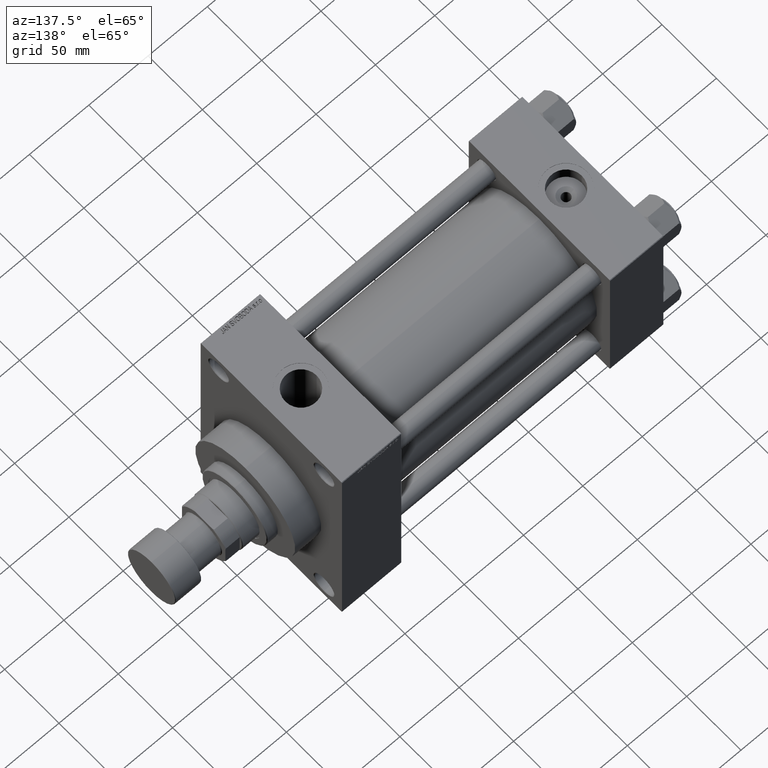
[diagram: clean part render]
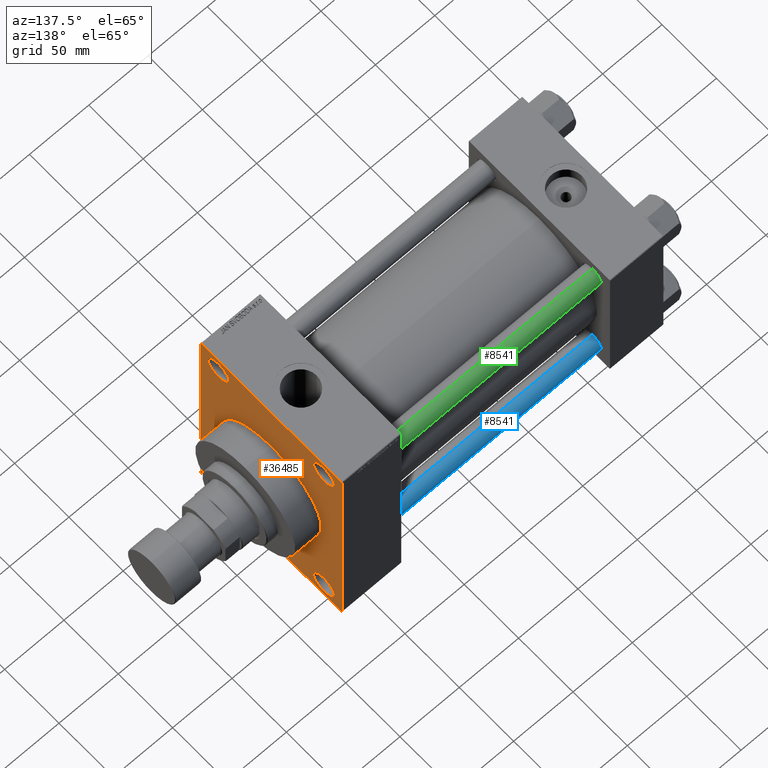
[diagram: same view with three faces highlighted in distinct colors, each labeled with its STEP entity id]
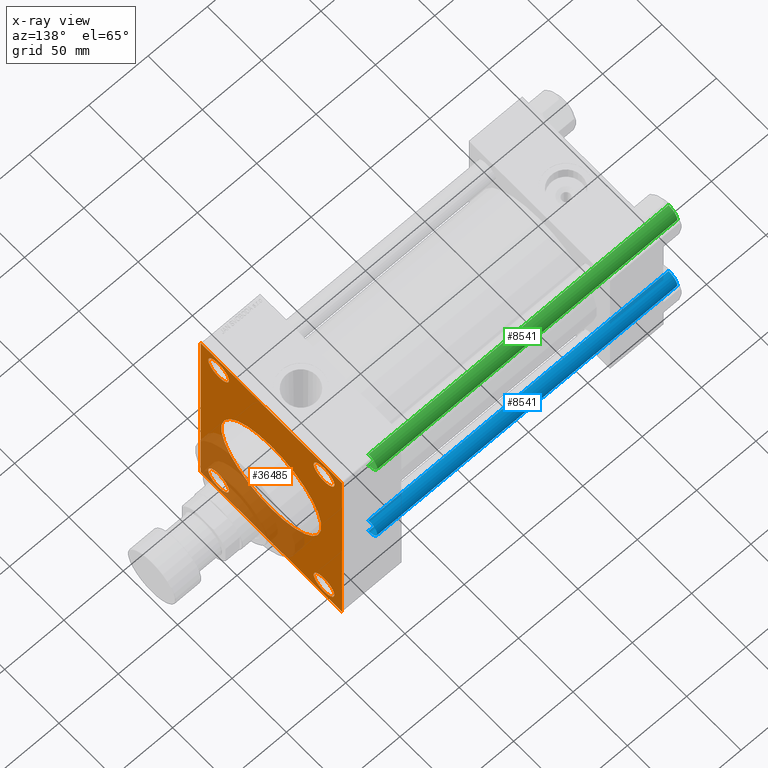
[diagram: x-ray of the same camera — body ghosted, the three highlighted faces saturated]
A machine part, auxiliary view with three faces highlighted in distinct colors.
The next image is the same camera in x-ray (body ghosted, the three faces saturated) — at least one of them is partly hidden behind the body in this view.
Their STEP definitions:

[orange] entity #36485 — the highlighted planar face has unit normal (-1, 0, 0).
#85 = DIRECTION ( 'NONE',  ( -1.000000000000000000, 0.000000000000000000, -0.000000000000000000 ) ) ;
#412 = ORIENTED_EDGE ( 'NONE', *, *, #6752, .T. ) ;
#1399 = ORIENTED_EDGE ( 'NONE', *, *, #30051, .T. ) ;
#1734 = DIRECTION ( 'NONE',  ( 1.000000000000000000, 0.000000000000000000, 0.000000000000000000 ) ) ;
#1818 = DIRECTION ( 'NONE',  ( 0.000000000000000000, 0.000000000000000000, 1.000000000000000000 ) ) ;
#2237 = VERTEX_POINT ( 'NONE', #36051 ) ;
#2972 = DIRECTION ( 'NONE',  ( -0.000000000000000000, 0.7071067811865474617, 0.7071067811865474617 ) ) ;
#3096 = DIRECTION ( 'NONE',  ( 0.000000000000000000, 0.000000000000000000, 1.000000000000000000 ) ) ;
#4787 = VERTEX_POINT ( 'NONE', #19225 ) ;
#4911 = ORIENTED_EDGE ( 'NONE', *, *, #46369, .T. ) ;
#5255 = VERTEX_POINT ( 'NONE', #42085 ) ;
#5990 = EDGE_CURVE ( 'NONE', #37056, #36915, #18496, .T. ) ;
#6415 = AXIS2_PLACEMENT_3D ( 'NONE', #33400, #85, #14921 ) ;
#6752 = EDGE_CURVE ( 'NONE', #26861, #14771, #14696, .T. ) ;
#6933 = ORIENTED_EDGE ( 'NONE', *, *, #28533, .T. ) ;
#6994 = ORIENTED_EDGE ( 'NONE', *, *, #35437, .T. ) ;
#7042 = DIRECTION ( 'NONE',  ( 0.000000000000000000, 0.000000000000000000, -1.000000000000000000 ) ) ;
#7650 = EDGE_CURVE ( 'NONE', #36219, #4787, #22130, .T. ) ;
#7727 = EDGE_LOOP ( 'NONE', ( #4911, #40565, #17588, #6994, #14036, #16125, #43380, #45181 ) ) ;
#8001 = CARTESIAN_POINT ( 'NONE',  ( 270.9999999999999432, -48.50000000000000000, -90.49999999999990052 ) ) ;
#8065 = CARTESIAN_POINT ( 'NONE',  ( 270.9999999999999432, 64.50000000000000000, 95.00000000000000000 ) ) ;
#8259 = CIRCLE ( 'NONE', #23767, 9.499999999999896971 ) ;
#8706 = VECTOR ( 'NONE', #2972, 1000.000000000000114 ) ;
#9236 = VERTEX_POINT ( 'NONE', #34212 ) ;
#9444 = ORIENTED_EDGE ( 'NONE', *, *, #10445, .T. ) ;
#9517 = CARTESIAN_POINT ( 'NONE',  ( 270.9999999999999432, -64.50000000000000000, -95.00000000000002842 ) ) ;
#9769 = DIRECTION ( 'NONE',  ( -1.000000000000000000, -0.000000000000000000, -0.000000000000000000 ) ) ;
#9778 = CARTESIAN_POINT ( 'NONE',  ( 270.9999999999999432, 65.00000000000000000, -94.50000000000002842 ) ) ;
#10147 = CARTESIAN_POINT ( 'NONE',  ( 270.9999999999999432, 48.50000000000000000, 81.00000000000000000 ) ) ;
#10203 = CARTESIAN_POINT ( 'NONE',  ( 270.9999999999999432, -48.50000000000000000, 90.49999999999990052 ) ) ;
#10445 = EDGE_CURVE ( 'NONE', #39868, #45071, #21254, .T. ) ;
#10466 = DIRECTION ( 'NONE',  ( 0.000000000000000000, 0.000000000000000000, 1.000000000000000000 ) ) ;
#10864 = CIRCLE ( 'NONE', #11627, 9.499999999999896971 ) ;
#11157 = VECTOR ( 'NONE', #25531, 1000.000000000000114 ) ;
#11353 = EDGE_LOOP ( 'NONE', ( #9444, #1399 ) ) ;
#11627 = AXIS2_PLACEMENT_3D ( 'NONE', #29162, #17976, #18457 ) ;
#11662 = CIRCLE ( 'NONE', #13989, 9.499999999999896971 ) ;
#11748 = PLANE ( 'NONE',  #6415 ) ;
#11923 = DIRECTION ( 'NONE',  ( 0.000000000000000000, -1.000000000000000000, 0.000000000000000000 ) ) ;
#12392 = EDGE_CURVE ( 'NONE', #44246, #32976, #42603, .T. ) ;
#12414 = CIRCLE ( 'NONE', #23283, 9.499999999999896971 ) ;
#12790 = EDGE_LOOP ( 'NONE', ( #32783, #412 ) ) ;
#13036 = AXIS2_PLACEMENT_3D ( 'NONE', #46329, #34650, #1818 ) ;
#13458 = EDGE_CURVE ( 'NONE', #5255, #32976, #15813, .T. ) ;
#13989 = AXIS2_PLACEMENT_3D ( 'NONE', #35998, #47443, #10466 ) ;
#14036 = ORIENTED_EDGE ( 'NONE', *, *, #17519, .F. ) ;
#14517 = CIRCLE ( 'NONE', #23052, 9.499999999999896971 ) ;
#14696 = CIRCLE ( 'NONE', #44990, 9.499999999999896971 ) ;
#14771 = VERTEX_POINT ( 'NONE', #8001 ) ;
#14850 = CARTESIAN_POINT ( 'NONE',  ( 270.9999999999999432, 48.50000000000000000, -71.50000000000009948 ) ) ;
#14921 = DIRECTION ( 'NONE',  ( -0.000000000000000000, 0.000000000000000000, 1.000000000000000000 ) ) ;
#15606 = EDGE_LOOP ( 'NONE', ( #6933, #37493 ) ) ;
#15813 = LINE ( 'NONE', #37224, #32222 ) ;
#16125 = ORIENTED_EDGE ( 'NONE', *, *, #30946, .T. ) ;
#16537 = EDGE_CURVE ( 'NONE', #36915, #37056, #8259, .T. ) ;
#17075 = DIRECTION ( 'NONE',  ( 0.000000000000000000, 0.000000000000000000, 1.000000000000000000 ) ) ;
#17362 = CIRCLE ( 'NONE', #18925, 46.00000000000000000 ) ;
#17365 = ORIENTED_EDGE ( 'NONE', *, *, #41335, .F. ) ;
#17413 = CARTESIAN_POINT ( 'NONE',  ( 270.9999999999999432, 65.00000000000000000, 95.00000000000000000 ) ) ;
#17519 = EDGE_CURVE ( 'NONE', #30579, #9236, #22548, .T. ) ;
#17569 = EDGE_CURVE ( 'NONE', #18954, #23853, #29280, .T. ) ;
#17588 = ORIENTED_EDGE ( 'NONE', *, *, #13458, .F. ) ;
#17921 = EDGE_CURVE ( 'NONE', #14771, #26861, #14517, .T. ) ;
#17976 = DIRECTION ( 'NONE',  ( -1.000000000000000000, -0.000000000000000000, -0.000000000000000000 ) ) ;
#18187 = CARTESIAN_POINT ( 'NONE',  ( 270.9999999999999432, 65.00000000000000000, 94.50000000000000000 ) ) ;
#18228 = CARTESIAN_POINT ( 'NONE',  ( 270.9999999999999432, 0.000000000000000000, 46.00000000000000000 ) ) ;
#18457 = DIRECTION ( 'NONE',  ( 0.000000000000000000, 0.000000000000000000, 1.000000000000000000 ) ) ;
#18496 = CIRCLE ( 'NONE', #13036, 9.499999999999896971 ) ;
#18576 = FACE_BOUND ( 'NONE', #32505, .T. ) ;
#18860 = CARTESIAN_POINT ( 'NONE',  ( 270.9999999999999432, -48.50000000000000000, 81.00000000000000000 ) ) ;
#18895 = CARTESIAN_POINT ( 'NONE',  ( 270.9999999999999432, 0.000000000000000000, 0.000000000000000000 ) ) ;
#18925 = AXIS2_PLACEMENT_3D ( 'NONE', #42844, #1734, #45998 ) ;
#18954 = VERTEX_POINT ( 'NONE', #32183 ) ;
#19225 = CARTESIAN_POINT ( 'NONE',  ( 270.9999999999999432, -65.00000000000000000, 94.49999999999992895 ) ) ;
#19295 = FACE_BOUND ( 'NONE', #11353, .T. ) ;
#19345 = DIRECTION ( 'NONE',  ( 0.000000000000000000, 0.000000000000000000, 1.000000000000000000 ) ) ;
#19993 = DIRECTION ( 'NONE',  ( 0.000000000000000000, 0.7071067811865376918, -0.7071067811865574537 ) ) ;
#20192 = DIRECTION ( 'NONE',  ( -1.000000000000000000, -0.000000000000000000, -0.000000000000000000 ) ) ;
#21051 = EDGE_CURVE ( 'NONE', #2237, #36219, #24220, .T. ) ;
#21103 = CARTESIAN_POINT ( 'NONE',  ( 270.9999999999999432, 48.50000000000000000, -90.49999999999990052 ) ) ;
#21226 = DIRECTION ( 'NONE',  ( 0.000000000000000000, 0.000000000000000000, 1.000000000000000000 ) ) ;
#21254 = CIRCLE ( 'NONE', #39090, 9.499999999999896971 ) ;
#22130 = LINE ( 'NONE', #22604, #11157 ) ;
#22548 = LINE ( 'NONE', #41025, #38560 ) ;
#22604 = CARTESIAN_POINT ( 'NONE',  ( 270.9999999999999432, -65.00000000000000000, 94.49999999999992895 ) ) ;
#22910 = DIRECTION ( 'NONE',  ( 0.000000000000000000, -0.7071067811865474617, 0.7071067811865474617 ) ) ;
#23052 = AXIS2_PLACEMENT_3D ( 'NONE', #43368, #24867, #21226 ) ;
#23118 = EDGE_LOOP ( 'NONE', ( #17365, #36908 ) ) ;
#23283 = AXIS2_PLACEMENT_3D ( 'NONE', #35542, #9769, #17075 ) ;
#23767 = AXIS2_PLACEMENT_3D ( 'NONE', #10147, #32279, #35915 ) ;
#23832 = CARTESIAN_POINT ( 'NONE',  ( 270.9999999999999432, -48.50000000000000000, -81.00000000000000000 ) ) ;
#23853 = VERTEX_POINT ( 'NONE', #18228 ) ;
#24220 = LINE ( 'NONE', #17413, #45691 ) ;
#24769 = ORIENTED_EDGE ( 'NONE', *, *, #5990, .T. ) ;
#24867 = DIRECTION ( 'NONE',  ( -1.000000000000000000, -0.000000000000000000, -0.000000000000000000 ) ) ;
#25079 = LINE ( 'NONE', #9778, #8706 ) ;
#25284 = ORIENTED_EDGE ( 'NONE', *, *, #16537, .T. ) ;
#25531 = DIRECTION ( 'NONE',  ( -0.000000000000000000, -0.7071067811865474617, -0.7071067811865474617 ) ) ;
#26419 = CARTESIAN_POINT ( 'NONE',  ( 270.9999999999999432, 48.50000000000000000, 71.50000000000009948 ) ) ;
#26489 = CARTESIAN_POINT ( 'NONE',  ( 270.9999999999999432, -65.00000000000000000, 94.99999999999998579 ) ) ;
#26861 = VERTEX_POINT ( 'NONE', #43292 ) ;
#27284 = VERTEX_POINT ( 'NONE', #14850 ) ;
#28075 = EDGE_CURVE ( 'NONE', #27284, #48140, #12414, .T. ) ;
#28533 = EDGE_CURVE ( 'NONE', #48140, #27284, #10864, .T. ) ;
#29162 = CARTESIAN_POINT ( 'NONE',  ( 270.9999999999999432, 48.50000000000000000, -81.00000000000000000 ) ) ;
#29280 = CIRCLE ( 'NONE', #30037, 46.00000000000000000 ) ;
#29810 = DIRECTION ( 'NONE',  ( -1.000000000000000000, -0.000000000000000000, -0.000000000000000000 ) ) ;
#30037 = AXIS2_PLACEMENT_3D ( 'NONE', #18895, #33724, #44681 ) ;
#30051 = EDGE_CURVE ( 'NONE', #45071, #39868, #11662, .T. ) ;
#30579 = VERTEX_POINT ( 'NONE', #18187 ) ;
#30946 = EDGE_CURVE ( 'NONE', #30579, #2237, #44329, .T. ) ;
#32183 = CARTESIAN_POINT ( 'NONE',  ( 270.9999999999999432, 5.633375276077824704E-15, -46.00000000000000000 ) ) ;
#32222 = VECTOR ( 'NONE', #11923, 1000.000000000000000 ) ;
#32279 = DIRECTION ( 'NONE',  ( -1.000000000000000000, -0.000000000000000000, -0.000000000000000000 ) ) ;
#32505 = EDGE_LOOP ( 'NONE', ( #25284, #24769 ) ) ;
#32783 = ORIENTED_EDGE ( 'NONE', *, *, #17921, .T. ) ;
#32976 = VERTEX_POINT ( 'NONE', #39611 ) ;
#33400 = CARTESIAN_POINT ( 'NONE',  ( 270.9999999999999432, 0.000000000000000000, 0.000000000000000000 ) ) ;
#33484 = DIRECTION ( 'NONE',  ( 0.000000000000000000, 0.000000000000000000, -1.000000000000000000 ) ) ;
#33724 = DIRECTION ( 'NONE',  ( 1.000000000000000000, 0.000000000000000000, 0.000000000000000000 ) ) ;
#33774 = LINE ( 'NONE', #26489, #36171 ) ;
#34116 = FACE_OUTER_BOUND ( 'NONE', #7727, .T. ) ;
#34212 = CARTESIAN_POINT ( 'NONE',  ( 270.9999999999999432, 65.00000000000000000, -94.50000000000002842 ) ) ;
#34650 = DIRECTION ( 'NONE',  ( -1.000000000000000000, -0.000000000000000000, -0.000000000000000000 ) ) ;
#34892 = CARTESIAN_POINT ( 'NONE',  ( 270.9999999999999432, 48.50000000000000000, 90.49999999999990052 ) ) ;
#35437 = EDGE_CURVE ( 'NONE', #5255, #9236, #25079, .T. ) ;
#35542 = CARTESIAN_POINT ( 'NONE',  ( 270.9999999999999432, 48.50000000000000000, -81.00000000000000000 ) ) ;
#35915 = DIRECTION ( 'NONE',  ( 0.000000000000000000, 0.000000000000000000, 1.000000000000000000 ) ) ;
#35998 = CARTESIAN_POINT ( 'NONE',  ( 270.9999999999999432, -48.50000000000000000, 81.00000000000000000 ) ) ;
#36051 = CARTESIAN_POINT ( 'NONE',  ( 270.9999999999999432, 64.50000000000000000, 95.00000000000000000 ) ) ;
#36171 = VECTOR ( 'NONE', #7042, 1000.000000000000000 ) ;
#36219 = VERTEX_POINT ( 'NONE', #39265 ) ;
#36485 = ADVANCED_FACE ( 'NONE', ( #19295, #37282, #40939, #18576, #45081, #34116 ), #11748, .F. ) ;
#36908 = ORIENTED_EDGE ( 'NONE', *, *, #17569, .F. ) ;
#36915 = VERTEX_POINT ( 'NONE', #26419 ) ;
#37056 = VERTEX_POINT ( 'NONE', #34892 ) ;
#37224 = CARTESIAN_POINT ( 'NONE',  ( 270.9999999999999432, 65.00000000000000000, -95.00000000000002842 ) ) ;
#37282 = FACE_BOUND ( 'NONE', #12790, .T. ) ;
#37493 = ORIENTED_EDGE ( 'NONE', *, *, #28075, .T. ) ;
#38560 = VECTOR ( 'NONE', #33484, 1000.000000000000000 ) ;
#39090 = AXIS2_PLACEMENT_3D ( 'NONE', #18860, #29810, #19345 ) ;
#39265 = CARTESIAN_POINT ( 'NONE',  ( 270.9999999999999432, -64.49999999999994316, 94.99999999999998579 ) ) ;
#39611 = CARTESIAN_POINT ( 'NONE',  ( 270.9999999999999432, -64.50000000000000000, -95.00000000000002842 ) ) ;
#39868 = VERTEX_POINT ( 'NONE', #40193 ) ;
#40193 = CARTESIAN_POINT ( 'NONE',  ( 270.9999999999999432, -48.50000000000000000, 71.50000000000009948 ) ) ;
#40565 = ORIENTED_EDGE ( 'NONE', *, *, #12392, .T. ) ;
#40939 = FACE_BOUND ( 'NONE', #15606, .T. ) ;
#41025 = CARTESIAN_POINT ( 'NONE',  ( 270.9999999999999432, 65.00000000000000000, 95.00000000000000000 ) ) ;
#41335 = EDGE_CURVE ( 'NONE', #23853, #18954, #17362, .T. ) ;
#41589 = CARTESIAN_POINT ( 'NONE',  ( 270.9999999999999432, -65.00000000000000000, -94.50000000000001421 ) ) ;
#42085 = CARTESIAN_POINT ( 'NONE',  ( 270.9999999999999432, 64.50000000000000000, -95.00000000000002842 ) ) ;
#42603 = LINE ( 'NONE', #9517, #45419 ) ;
#42844 = CARTESIAN_POINT ( 'NONE',  ( 270.9999999999999432, 0.000000000000000000, 0.000000000000000000 ) ) ;
#43292 = CARTESIAN_POINT ( 'NONE',  ( 270.9999999999999432, -48.50000000000000000, -71.50000000000009948 ) ) ;
#43368 = CARTESIAN_POINT ( 'NONE',  ( 270.9999999999999432, -48.50000000000000000, -81.00000000000000000 ) ) ;
#43380 = ORIENTED_EDGE ( 'NONE', *, *, #21051, .T. ) ;
#44246 = VERTEX_POINT ( 'NONE', #41589 ) ;
#44329 = LINE ( 'NONE', #8065, #45884 ) ;
#44681 = DIRECTION ( 'NONE',  ( 0.000000000000000000, 0.000000000000000000, -1.000000000000000000 ) ) ;
#44990 = AXIS2_PLACEMENT_3D ( 'NONE', #23832, #20192, #3096 ) ;
#45071 = VERTEX_POINT ( 'NONE', #10203 ) ;
#45081 = FACE_BOUND ( 'NONE', #23118, .T. ) ;
#45181 = ORIENTED_EDGE ( 'NONE', *, *, #7650, .T. ) ;
#45419 = VECTOR ( 'NONE', #19993, 999.9999999999998863 ) ;
#45691 = VECTOR ( 'NONE', #46359, 1000.000000000000000 ) ;
#45884 = VECTOR ( 'NONE', #22910, 1000.000000000000114 ) ;
#45998 = DIRECTION ( 'NONE',  ( 0.000000000000000000, 0.000000000000000000, -1.000000000000000000 ) ) ;
#46329 = CARTESIAN_POINT ( 'NONE',  ( 270.9999999999999432, 48.50000000000000000, 81.00000000000000000 ) ) ;
#46359 = DIRECTION ( 'NONE',  ( 0.000000000000000000, -1.000000000000000000, -1.067522139062650425E-16 ) ) ;
#46369 = EDGE_CURVE ( 'NONE', #4787, #44246, #33774, .T. ) ;
#47443 = DIRECTION ( 'NONE',  ( -1.000000000000000000, -0.000000000000000000, -0.000000000000000000 ) ) ;
#48140 = VERTEX_POINT ( 'NONE', #21103 ) ;

[blue] entity #8541 — the highlighted cylindrical surface (edge-blend (fillet) strip) has radius 8 mm, axis along (-1, -0, 0).
#3929 = LINE ( 'NONE', #41360, #13429 ) ;
#5021 = VECTOR ( 'NONE', #17263, 1000.000000000000000 ) ;
#8033 = DIRECTION ( 'NONE',  ( -0.000000000000000000, -0.000000000000000000, -1.000000000000000000 ) ) ;
#8246 = CARTESIAN_POINT ( 'NONE',  ( 8.000000000000000000, 9.797174393178825657E-16, 253.5000000000000568 ) ) ;
#8541 = ADVANCED_FACE ( 'NONE', ( #16206 ), #27383, .T. ) ;
#8592 = VERTEX_POINT ( 'NONE', #10104 ) ;
#9747 = AXIS2_PLACEMENT_3D ( 'NONE', #42812, #13620, #17518 ) ;
#9958 = EDGE_CURVE ( 'NONE', #21903, #14810, #36869, .T. ) ;
#10104 = CARTESIAN_POINT ( 'NONE',  ( 8.000000000000000000, 9.797174393178825657E-16, 0.5000000000000004441 ) ) ;
#12921 = DIRECTION ( 'NONE',  ( 0.000000000000000000, 0.000000000000000000, -1.000000000000000000 ) ) ;
#13429 = VECTOR ( 'NONE', #8033, 1000.000000000000000 ) ;
#13620 = DIRECTION ( 'NONE',  ( -0.000000000000000000, -0.000000000000000000, 1.000000000000000000 ) ) ;
#14810 = VERTEX_POINT ( 'NONE', #8246 ) ;
#14943 = EDGE_LOOP ( 'NONE', ( #48075, #41847, #22000, #29092 ) ) ;
#15287 = CARTESIAN_POINT ( 'NONE',  ( -8.000000000000000000, 0.000000000000000000, 253.5000000000000568 ) ) ;
#16206 = FACE_OUTER_BOUND ( 'NONE', #14943, .T. ) ;
#17263 = DIRECTION ( 'NONE',  ( -0.000000000000000000, -0.000000000000000000, -1.000000000000000000 ) ) ;
#17369 = AXIS2_PLACEMENT_3D ( 'NONE', #30697, #12921, #46492 ) ;
#17518 = DIRECTION ( 'NONE',  ( 1.000000000000000000, 0.000000000000000000, 0.000000000000000000 ) ) ;
#20581 = CARTESIAN_POINT ( 'NONE',  ( 0.000000000000000000, 0.000000000000000000, 254.0000000000000000 ) ) ;
#21903 = VERTEX_POINT ( 'NONE', #15287 ) ;
#22000 = ORIENTED_EDGE ( 'NONE', *, *, #46197, .T. ) ;
#25164 = AXIS2_PLACEMENT_3D ( 'NONE', #20581, #38568, #31280 ) ;
#27383 = CYLINDRICAL_SURFACE ( 'NONE', #25164, 8.000000000000000000 ) ;
#29092 = ORIENTED_EDGE ( 'NONE', *, *, #36707, .F. ) ;
#30697 = CARTESIAN_POINT ( 'NONE',  ( 0.000000000000000000, 0.000000000000000000, 253.5000000000000568 ) ) ;
#31280 = DIRECTION ( 'NONE',  ( -1.000000000000000000, 0.000000000000000000, 0.000000000000000000 ) ) ;
#31517 = CIRCLE ( 'NONE', #9747, 8.000000000000000000 ) ;
#31616 = CARTESIAN_POINT ( 'NONE',  ( 8.000000000000000000, 9.797174393178825657E-16, 254.0000000000000000 ) ) ;
#32409 = VERTEX_POINT ( 'NONE', #42290 ) ;
#36707 = EDGE_CURVE ( 'NONE', #21903, #32409, #3929, .T. ) ;
#36869 = CIRCLE ( 'NONE', #17369, 8.000000000000000000 ) ;
#38568 = DIRECTION ( 'NONE',  ( -0.000000000000000000, -0.000000000000000000, -1.000000000000000000 ) ) ;
#41360 = CARTESIAN_POINT ( 'NONE',  ( -8.000000000000000000, 0.000000000000000000, 254.0000000000000000 ) ) ;
#41847 = ORIENTED_EDGE ( 'NONE', *, *, #45080, .T. ) ;
#42290 = CARTESIAN_POINT ( 'NONE',  ( -8.000000000000000000, 0.000000000000000000, 0.5000000000000004441 ) ) ;
#42812 = CARTESIAN_POINT ( 'NONE',  ( 0.000000000000000000, 0.000000000000000000, 0.5000000000000004441 ) ) ;
#45080 = EDGE_CURVE ( 'NONE', #14810, #8592, #47182, .T. ) ;
#46197 = EDGE_CURVE ( 'NONE', #8592, #32409, #31517, .T. ) ;
#46492 = DIRECTION ( 'NONE',  ( 1.000000000000000000, 0.000000000000000000, 0.000000000000000000 ) ) ;
#47182 = LINE ( 'NONE', #31616, #5021 ) ;
#48075 = ORIENTED_EDGE ( 'NONE', *, *, #9958, .T. ) ;

[green] entity #8541 — the highlighted cylindrical surface (edge-blend (fillet) strip) has radius 8 mm, axis along (1, -0, -0).
#3929 = LINE ( 'NONE', #41360, #13429 ) ;
#5021 = VECTOR ( 'NONE', #17263, 1000.000000000000000 ) ;
#8033 = DIRECTION ( 'NONE',  ( -0.000000000000000000, -0.000000000000000000, -1.000000000000000000 ) ) ;
#8246 = CARTESIAN_POINT ( 'NONE',  ( 8.000000000000000000, 9.797174393178825657E-16, 253.5000000000000568 ) ) ;
#8541 = ADVANCED_FACE ( 'NONE', ( #16206 ), #27383, .T. ) ;
#8592 = VERTEX_POINT ( 'NONE', #10104 ) ;
#9747 = AXIS2_PLACEMENT_3D ( 'NONE', #42812, #13620, #17518 ) ;
#9958 = EDGE_CURVE ( 'NONE', #21903, #14810, #36869, .T. ) ;
#10104 = CARTESIAN_POINT ( 'NONE',  ( 8.000000000000000000, 9.797174393178825657E-16, 0.5000000000000004441 ) ) ;
#12921 = DIRECTION ( 'NONE',  ( 0.000000000000000000, 0.000000000000000000, -1.000000000000000000 ) ) ;
#13429 = VECTOR ( 'NONE', #8033, 1000.000000000000000 ) ;
#13620 = DIRECTION ( 'NONE',  ( -0.000000000000000000, -0.000000000000000000, 1.000000000000000000 ) ) ;
#14810 = VERTEX_POINT ( 'NONE', #8246 ) ;
#14943 = EDGE_LOOP ( 'NONE', ( #48075, #41847, #22000, #29092 ) ) ;
#15287 = CARTESIAN_POINT ( 'NONE',  ( -8.000000000000000000, 0.000000000000000000, 253.5000000000000568 ) ) ;
#16206 = FACE_OUTER_BOUND ( 'NONE', #14943, .T. ) ;
#17263 = DIRECTION ( 'NONE',  ( -0.000000000000000000, -0.000000000000000000, -1.000000000000000000 ) ) ;
#17369 = AXIS2_PLACEMENT_3D ( 'NONE', #30697, #12921, #46492 ) ;
#17518 = DIRECTION ( 'NONE',  ( 1.000000000000000000, 0.000000000000000000, 0.000000000000000000 ) ) ;
#20581 = CARTESIAN_POINT ( 'NONE',  ( 0.000000000000000000, 0.000000000000000000, 254.0000000000000000 ) ) ;
#21903 = VERTEX_POINT ( 'NONE', #15287 ) ;
#22000 = ORIENTED_EDGE ( 'NONE', *, *, #46197, .T. ) ;
#25164 = AXIS2_PLACEMENT_3D ( 'NONE', #20581, #38568, #31280 ) ;
#27383 = CYLINDRICAL_SURFACE ( 'NONE', #25164, 8.000000000000000000 ) ;
#29092 = ORIENTED_EDGE ( 'NONE', *, *, #36707, .F. ) ;
#30697 = CARTESIAN_POINT ( 'NONE',  ( 0.000000000000000000, 0.000000000000000000, 253.5000000000000568 ) ) ;
#31280 = DIRECTION ( 'NONE',  ( -1.000000000000000000, 0.000000000000000000, 0.000000000000000000 ) ) ;
#31517 = CIRCLE ( 'NONE', #9747, 8.000000000000000000 ) ;
#31616 = CARTESIAN_POINT ( 'NONE',  ( 8.000000000000000000, 9.797174393178825657E-16, 254.0000000000000000 ) ) ;
#32409 = VERTEX_POINT ( 'NONE', #42290 ) ;
#36707 = EDGE_CURVE ( 'NONE', #21903, #32409, #3929, .T. ) ;
#36869 = CIRCLE ( 'NONE', #17369, 8.000000000000000000 ) ;
#38568 = DIRECTION ( 'NONE',  ( -0.000000000000000000, -0.000000000000000000, -1.000000000000000000 ) ) ;
#41360 = CARTESIAN_POINT ( 'NONE',  ( -8.000000000000000000, 0.000000000000000000, 254.0000000000000000 ) ) ;
#41847 = ORIENTED_EDGE ( 'NONE', *, *, #45080, .T. ) ;
#42290 = CARTESIAN_POINT ( 'NONE',  ( -8.000000000000000000, 0.000000000000000000, 0.5000000000000004441 ) ) ;
#42812 = CARTESIAN_POINT ( 'NONE',  ( 0.000000000000000000, 0.000000000000000000, 0.5000000000000004441 ) ) ;
#45080 = EDGE_CURVE ( 'NONE', #14810, #8592, #47182, .T. ) ;
#46197 = EDGE_CURVE ( 'NONE', #8592, #32409, #31517, .T. ) ;
#46492 = DIRECTION ( 'NONE',  ( 1.000000000000000000, 0.000000000000000000, 0.000000000000000000 ) ) ;
#47182 = LINE ( 'NONE', #31616, #5021 ) ;
#48075 = ORIENTED_EDGE ( 'NONE', *, *, #9958, .T. ) ;